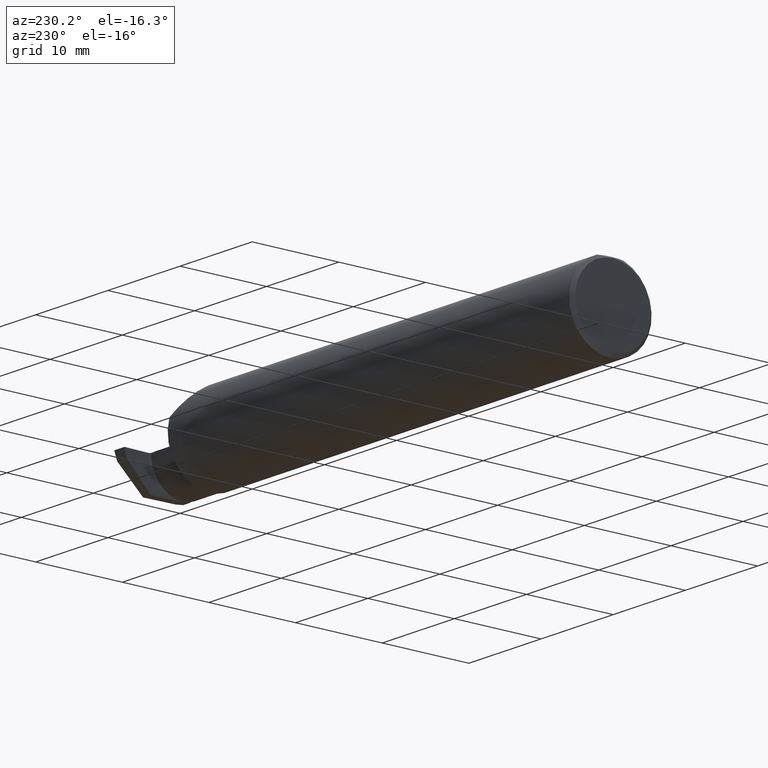
[diagram: clean part render]
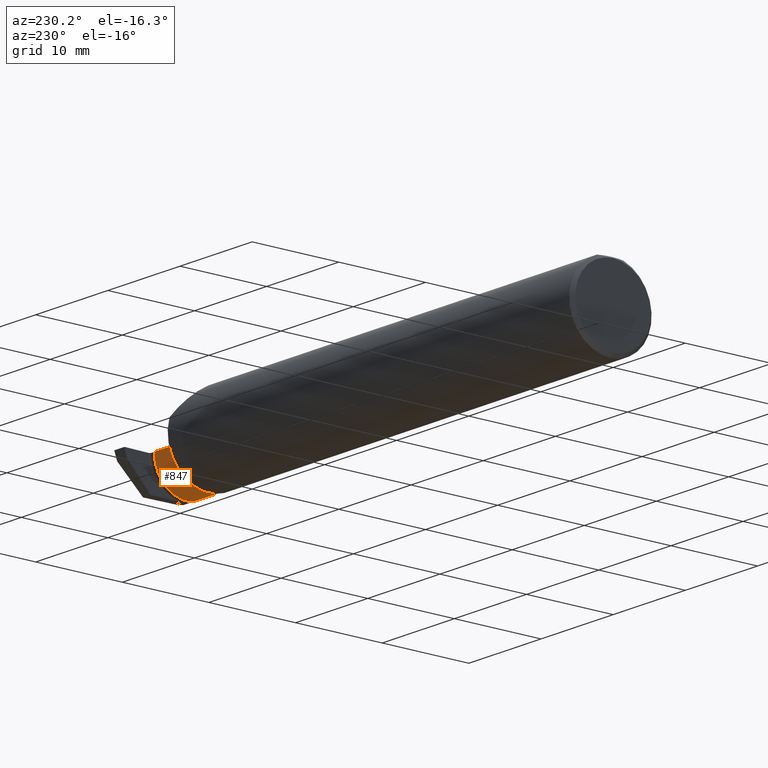
[diagram: same view with one face highlighted and labeled with its STEP entity id]
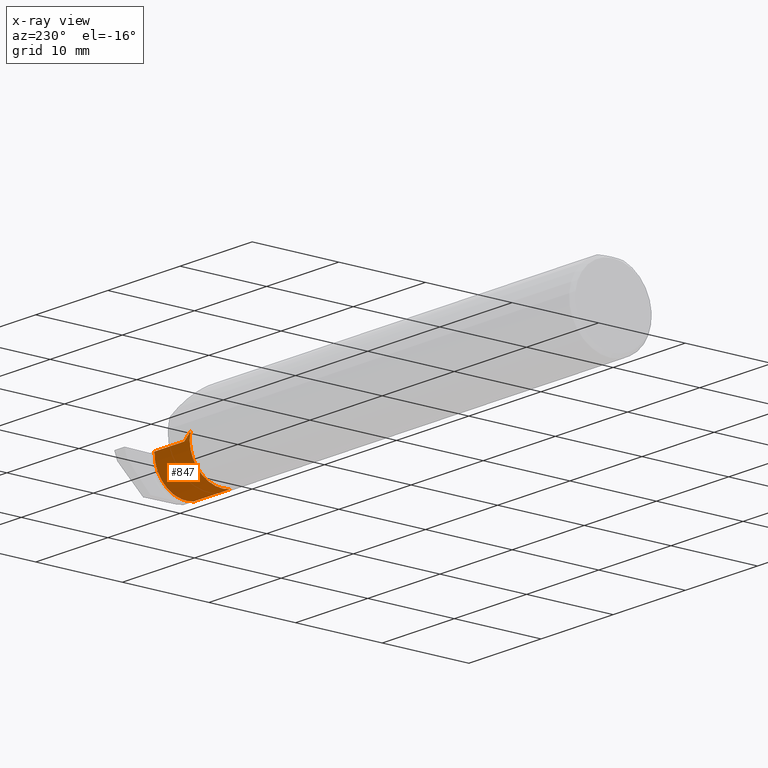
[diagram: x-ray of the same camera — body ghosted, the highlighted face saturated]
A machine part, auxiliary view. The second image highlights one B-rep face of the part: STEP entity #847.
The next image is the same camera in x-ray: the body ghosted, the highlighted face saturated — about 0% of this face is hidden behind the body in this view.
In plain terms, the highlighted cylindrical surface (partial cylindrical patch) has radius 3.81 mm, axis along (-1, -0, -0).
Its self-contained STEP definition (entity closure, byte-faithful):
#18 = CARTESIAN_POINT ( 'NONE',  ( 2.426833706308620275, 0.001115445784511360236, -0.1244700390796806971 ) ) ;
#28 = CARTESIAN_POINT ( 'NONE',  ( 2.422000000000233300, 0.06664999999976645162, 8.581691664019148845E-18 ) ) ;
#52 = CARTESIAN_POINT ( 'NONE',  ( 2.334499999999999797, -0.1172600179964007477, -0.1461167706989302817 ) ) ;
#55 = ORIENTED_EDGE ( 'NONE', *, *, #445, .F. ) ;
#69 = CARTESIAN_POINT ( 'NONE',  ( 2.229999999999999982, 0.06361938456699060829, 0.03000000000000039788 ) ) ;
#71 = CARTESIAN_POINT ( 'NONE',  ( 2.427647260851145905, -0.1172600179964007061, -0.1461167706989303094 ) ) ;
#91 = CARTESIAN_POINT ( 'NONE',  ( 2.422434865845503715, 0.06664999999999446367, -0.01133157876842959266 ) ) ;
#95 = CARTESIAN_POINT ( 'NONE',  ( 2.427789421639926282, -0.09504051963741953768, -0.1499699713423393310 ) ) ;
#100 = CARTESIAN_POINT ( 'NONE',  ( 2.425258880503181835, 0.04075339436640144919, -0.08498987122142720452 ) ) ;
#109 = VERTEX_POINT ( 'NONE', #69 ) ;
#121 = ORIENTED_EDGE ( 'NONE', *, *, #743, .T. ) ;
#144 = DIRECTION ( 'NONE',  ( -1.000000000000000000, -0.000000000000000000, -0.000000000000000000 ) ) ;
#145 = CARTESIAN_POINT ( 'NONE',  ( 2.229999999999999982, -0.1172600179964006922, -0.1461167706989302817 ) ) ;
#157 = AXIS2_PLACEMENT_3D ( 'NONE', #788, #358, #654 ) ;
#178 = CARTESIAN_POINT ( 'NONE',  ( 2.427759385537593406, -0.06120540487996248280, -0.1487771736200985961 ) ) ;
#200 = DIRECTION ( 'NONE',  ( -1.000000000000000000, -0.000000000000000000, -0.000000000000000000 ) ) ;
#217 = CARTESIAN_POINT ( 'NONE',  ( 2.205000000000000071, -0.08334999999999996578, 0.000000000000000000 ) ) ;
#253 = CARTESIAN_POINT ( 'NONE',  ( 2.424128320593858188, 0.05660152610338233664, -0.05513071596848233974 ) ) ;
#274 = DIRECTION ( 'NONE',  ( 1.000000000000000000, 0.000000000000000000, 0.000000000000000000 ) ) ;
#280 = LINE ( 'NONE', #52, #625 ) ;
#289 = FACE_OUTER_BOUND ( 'NONE', #760, .T. ) ;
#290 = CARTESIAN_POINT ( 'NONE',  ( 2.260000000000000231, 0.06664999999999998703, 2.939152317953647352E-17 ) ) ;
#323 = EDGE_CURVE ( 'NONE', #901, #558, #280, .T. ) ;
#341 = CARTESIAN_POINT ( 'NONE',  ( 2.205000000000000071, 0.06665000000000001479, 3.612708057484693206E-17 ) ) ;
#358 = DIRECTION ( 'NONE',  ( -1.000000000000000000, -0.000000000000000000, -0.000000000000000000 ) ) ;
#376 = CARTESIAN_POINT ( 'NONE',  ( 2.427526798689756848, -0.03939163738293976341, -0.1438495493195664499 ) ) ;
#384 = CIRCLE ( 'NONE', #157, 0.1499999999999999667 ) ;
#387 = CARTESIAN_POINT ( 'NONE',  ( 2.425904760229404378, 0.02678675198654604725, -0.1024442607731217841 ) ) ;
#393 = CARTESIAN_POINT ( 'NONE',  ( 2.427733713403087634, -0.1062136810230449174, -0.1486803469658367349 ) ) ;
#406 = LINE ( 'NONE', #341, #553 ) ;
#425 = DIRECTION ( 'NONE',  ( 0.000000000000000000, 0.000000000000000000, 1.000000000000000000 ) ) ;
#445 = EDGE_CURVE ( 'NONE', #109, #558, #384, .T. ) ;
#447 = CARTESIAN_POINT ( 'NONE',  ( 2.424931547983626423, 0.04684530449680912589, -0.07533265021785930105 ) ) ;
#453 = VERTEX_POINT ( 'NONE', #499 ) ;
#455 = CARTESIAN_POINT ( 'NONE',  ( 2.427382030727522899, -0.02860031094096802950, -0.1401013686352542420 ) ) ;
#465 = CARTESIAN_POINT ( 'NONE',  ( 2.427647260851145905, -0.1172600179964007061, -0.1461167706989303094 ) ) ;
#477 = CARTESIAN_POINT ( 'NONE',  ( 2.260000000000000231, 0.06664999999999998703, 2.939152317953647352E-17 ) ) ;
#492 = CARTESIAN_POINT ( 'NONE',  ( 2.239881184731320030, 0.06563637295415016004, 0.02011881526868028111 ) ) ;
#499 = CARTESIAN_POINT ( 'NONE',  ( 2.422000000000233300, 0.06664999999976645162, 8.581691664019148845E-18 ) ) ;
#522 = VERTEX_POINT ( 'NONE', #290 ) ;
#524 = CARTESIAN_POINT ( 'NONE',  ( 2.422837535177259749, 0.06536221434844542710, -0.02262143174627317260 ) ) ;
#528 = CARTESIAN_POINT ( 'NONE',  ( 2.427815196376261309, -0.07244320275481980209, -0.1500290049546004201 ) ) ;
#538 = CARTESIAN_POINT ( 'NONE',  ( 2.426238560955294776, 0.01877817964757707084, -0.1104401968576011195 ) ) ;
#553 = VECTOR ( 'NONE', #274, 39.37007874015748143 ) ;
#558 = VERTEX_POINT ( 'NONE', #145 ) ;
#580 = EDGE_CURVE ( 'NONE', #453, #901, #642, .T. ) ;
#589 = ORIENTED_EDGE ( 'NONE', *, *, #580, .T. ) ;
#625 = VECTOR ( 'NONE', #200, 39.37007874015748143 ) ;
#642 = B_SPLINE_CURVE_WITH_KNOTS ( 'NONE', 3,
 ( #28, #91, #524, #814, #253, #447, #100, #387, #538, #18, #820, #455, #376, #178, #528, #95, #393, #465 ),
 .UNSPECIFIED., .F., .F.,
 ( 4, 2, 2, 2, 2, 2, 2, 2, 4 ),
 ( 1.072437431523269895E-15, 0.0008601683740789389625, 0.001720336748156805649, 0.002580505122234672336, 0.003440673496312538805, 0.004300841870390404408, 0.005161010244468271745, 0.006021178618546138214, 0.006881346992624002949 ),
 .UNSPECIFIED. ) ;
#647 =( BOUNDED_CURVE ( )  B_SPLINE_CURVE ( 3, ( #685, #492, #915, #477 ),
 .UNSPECIFIED., .F., .F. ) 
 B_SPLINE_CURVE_WITH_KNOTS ( ( 4, 4 ),
 ( 1.369438406004563014, 1.570796326794896558 ),
 .UNSPECIFIED. ) 
 CURVE ( )  GEOMETRIC_REPRESENTATION_ITEM ( )  RATIONAL_B_SPLINE_CURVE ( ( 1.000000000000000000, 0.9966241020034158904, 0.9966241020034158904, 1.000000000000000000 ) ) 
 REPRESENTATION_ITEM ( '' )  );
#654 = DIRECTION ( 'NONE',  ( 0.000000000000000000, 0.000000000000000000, 1.000000000000000000 ) ) ;
#685 = CARTESIAN_POINT ( 'NONE',  ( 2.229999999999999982, 0.06361938456699060829, 0.03000000000000039788 ) ) ;
#718 = EDGE_CURVE ( 'NONE', #109, #522, #647, .T. ) ;
#732 = ORIENTED_EDGE ( 'NONE', *, *, #323, .T. ) ;
#743 = EDGE_CURVE ( 'NONE', #522, #453, #406, .T. ) ;
#760 = EDGE_LOOP ( 'NONE', ( #121, #589, #732, #55, #837 ) ) ;
#774 = CYLINDRICAL_SURFACE ( 'NONE', #858, 0.1499999999999999667 ) ;
#788 = CARTESIAN_POINT ( 'NONE',  ( 2.229999999999999982, -0.08334999999999996578, 0.000000000000000000 ) ) ;
#814 = CARTESIAN_POINT ( 'NONE',  ( 2.423687597543640049, 0.06031148463011985067, -0.04459181207956351700 ) ) ;
#820 = CARTESIAN_POINT ( 'NONE',  ( 2.427045974360904967, -0.008364421317015221721, -0.1303958777535163260 ) ) ;
#837 = ORIENTED_EDGE ( 'NONE', *, *, #718, .T. ) ;
#847 = ADVANCED_FACE ( 'NONE', ( #289 ), #774, .T. ) ;
#858 = AXIS2_PLACEMENT_3D ( 'NONE', #217, #144, #425 ) ;
#901 = VERTEX_POINT ( 'NONE', #71 ) ;
#915 = CARTESIAN_POINT ( 'NONE',  ( 2.249915058064202000, 0.06665000000000001479, 0.01008494193579768938 ) ) ;